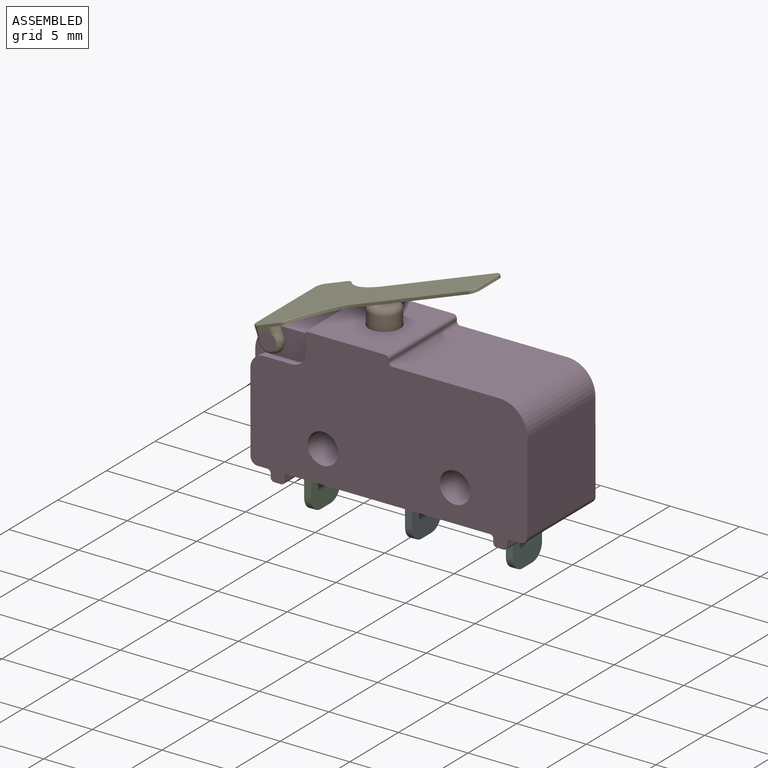
[diagram: assembled view]
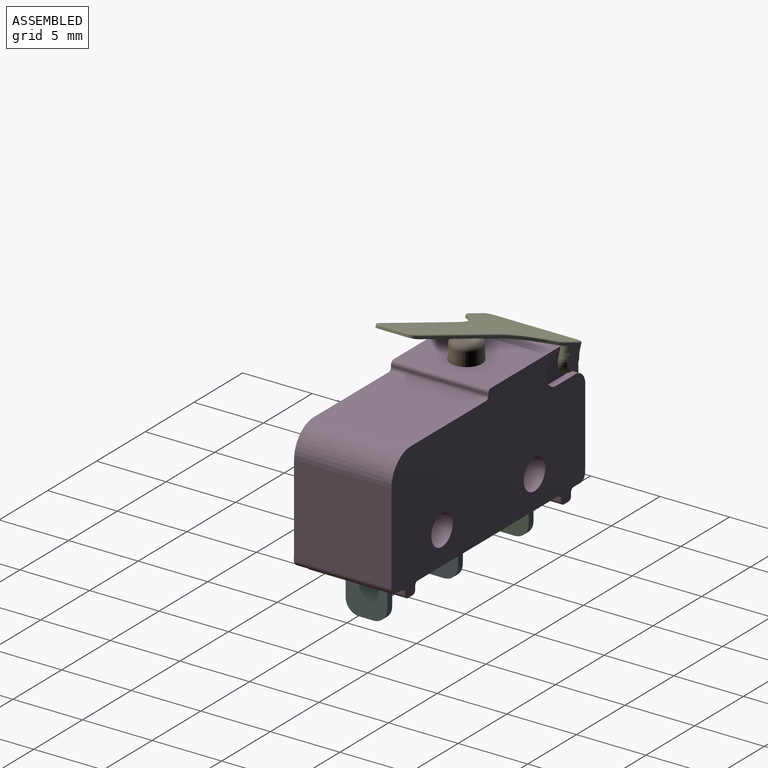
[diagram: assembled view, second angle]
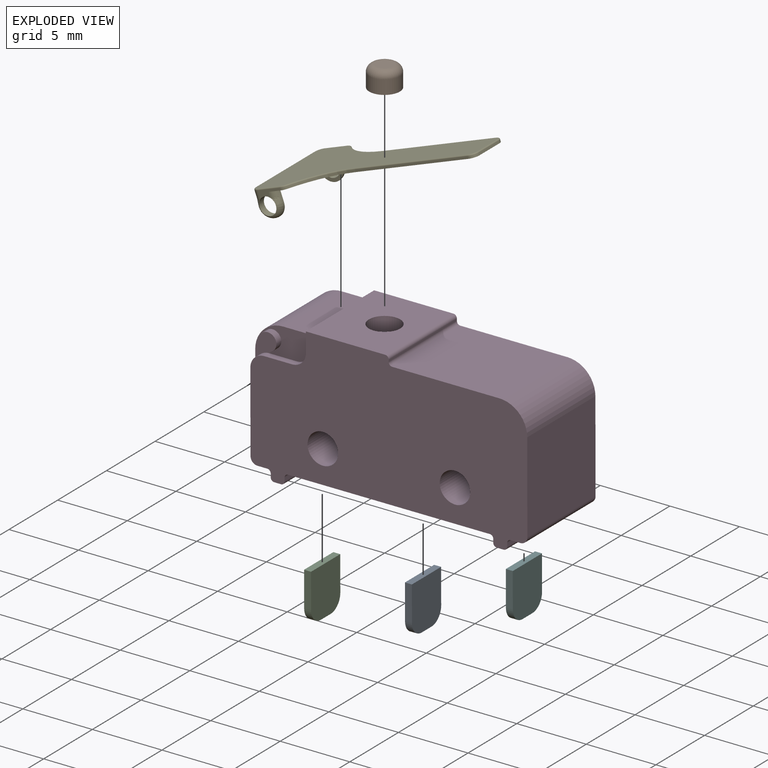
[diagram: exploded view]
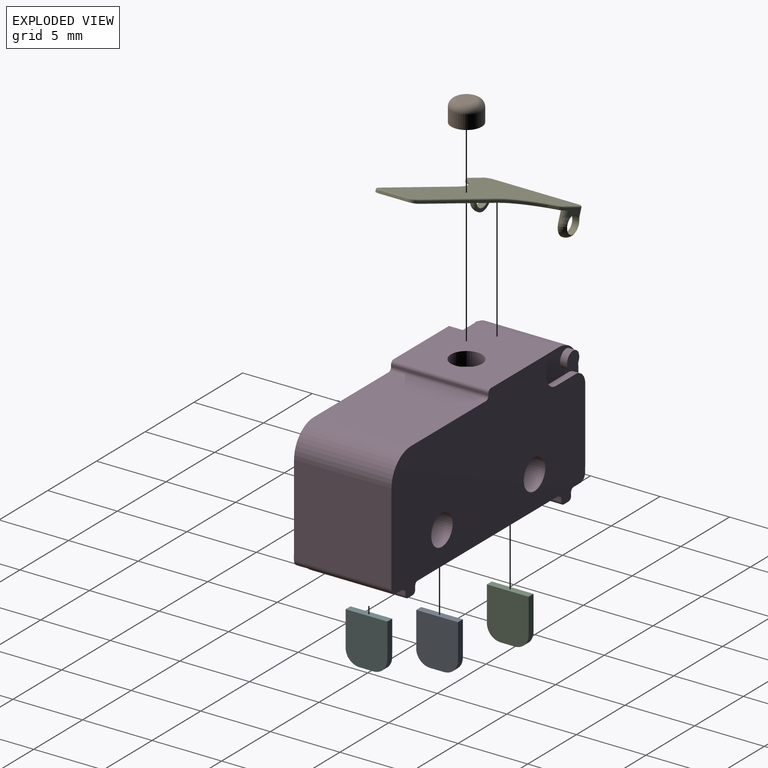
[diagram: exploded view, second angle]
ASSEMBLY  parts=6 mates=5
PART A: 8 faces, bbox 0.5x3x3.5 mm
  f0: plane 3x0.5mm, normal (0,0,1), area 1.5mm2, adj f1,f3,f4,f5
  f1: plane 3.5x3mm, normal (-1,0,0), area 10.1mm2, adj f0,f2,f4,f5,f6,f7
  f2: plane 1x0.5mm, normal (0,0,-1), area 0.5mm2, adj f1,f3,f6,f7
  f3: plane 3.5x3mm, normal (1,0,0), area 10.1mm2, adj f0,f2,f4,f5,f6,f7
  f4: plane 2.5x0.5mm, normal (0,1,0), area 1.3mm2, adj f0,f1,f3,f7
  f5: plane 2.5x0.5mm, normal (0,-1,0), area 1.3mm2, adj f0,f1,f3,f6
  f6: cylinder r=1mm len=1mm, axis (1,0,0), area 0.8mm2, adj f1,f2,f3,f5
  f7: cylinder r=1mm len=1mm, axis (-1,0,0), area 0.8mm2, adj f1,f2,f3,f4
PART B: 4 faces, bbox 2.4x2.4x1.5 mm
  f0: cylinder r=1.1mm len=2.2mm, axis (0,0,-1), area 6.9mm2, adj f2,f3
  f1: plane 1.2x1.2mm, normal (0,0,1), area 1.1mm2, adj f3
  f2: plane 2.2x2.2mm, normal (0,0,-1), area 3.8mm2, adj f0
  f3: torus R=0.6mm, axis (0,0,1), area 4.5mm2, adj f0,f1
PART C: same geometry as A
PART D: 64 faces, bbox 19.9x7x10.4 mm
  f0: plane 14.5x7mm, normal (0,0,-1), area 98.5mm2, adj f1,f2,f5,f22,f32,f33,f48,f49
  f1: cylinder r=0.25mm len=2mm, axis (0,-1,0), area 0.8mm2, adj f0,f5,f19,f53
  f2: cylinder r=0.25mm len=2mm, axis (0,1,0), area 0.8mm2, adj f0,f5,f7,f49
  f3: plane 7x6.75mm, normal (-1,0,0), area 46.2mm2, adj f5,f22,f35,f37,f38,f61,f62,f63
  f4: plane 6x1.75mm, normal (0,0,1), area 10.5mm2, adj f6,f37,f38,f61
  f5: plane 19.9x10.4mm, normal (0,1,0), area 168.9mm2, adj f0,f1,f2,f3,f7,f8,f9,f10
  f6: cylinder r=0.25mm len=6mm, axis (0,-1,0), area 2.4mm2, adj f4,f15,f37,f38
  f7: plane 7x0.7mm, normal (-1,0,0), area 3.1mm2, adj f2,f5,f22,f26,f33,f49,f50,f51
  f8: plane 7x0.5mm, normal (0,0,-1), area 3.5mm2, adj f5,f22,f26,f27
  f9: plane 7x0.25mm, normal (1,0,0), area 1.8mm2, adj f5,f22,f27,f28
  f10: plane 7x0.7mm, normal (0,0,-1), area 4.9mm2, adj f5,f22,f28,f34
  f11: plane 7x6.5mm, normal (1,0,0), area 45.5mm2, adj f5,f22,f23,f34
  f12: plane 7.7x7mm, normal (0,0,1), area 53.9mm2, adj f5,f22,f23,f24
  f13: plane 7x0.15mm, normal (1,0,0), area 1mm2, adj f5,f22,f24,f25
  f14: plane 7x5.7mm, normal (0,0,1), area 35.9mm2, adj f5,f15,f22,f25,f42
  f15: plane 7x1.4mm, normal (-1,0,0), area 2.3mm2, adj f5,f6,f14,f22,f37,f38,f40,f41
  f16: plane 7x0.7mm, normal (0,0,-1), area 4.9mm2, adj f5,f22,f29,f35
  f17: plane 7x0.25mm, normal (-1,0,0), area 1.8mm2, adj f5,f22,f29,f30
  f18: plane 7x0.5mm, normal (0,0,-1), area 3.5mm2, adj f5,f22,f30,f31
  f19: plane 7x0.7mm, normal (1,0,0), area 3.1mm2, adj f1,f5,f22,f31,f32,f53,f54,f55
  f20: cylinder r=1.1mm len=7mm, axis (0,1,0), area 48.4mm2, adj f5,f22
  f21: cylinder r=1.1mm len=7mm, axis (0,1,0), area 48.4mm2, adj f5,f22
  f22: plane 19.9x10.4mm, normal (0,-1,0), area 168.9mm2, adj f0,f3,f7,f8,f9,f10,f11,f12
  f23: cylinder r=2mm len=7mm, axis (0,1,0), area 22mm2, adj f5,f11,f12,f22
  f24: cylinder r=0.25mm len=7mm, axis (0,-1,0), area 2.7mm2, adj f5,f12,f13,f22
  f25: cylinder r=0.25mm len=7mm, axis (0,-1,0), area 2.7mm2, adj f5,f13,f14,f22
  f26: cylinder r=0.25mm len=7mm, axis (0,1,0), area 2.7mm2, adj f5,f7,f8,f22
  f27: cylinder r=0.25mm len=7mm, axis (0,1,0), area 2.7mm2, adj f5,f8,f9,f22
  f28: cylinder r=0.25mm len=7mm, axis (0,1,0), area 2.7mm2, adj f5,f9,f10,f22
  f29: cylinder r=0.25mm len=7mm, axis (0,-1,0), area 2.7mm2, adj f5,f16,f17,f22
  f30: cylinder r=0.25mm len=7mm, axis (0,1,0), area 2.7mm2, adj f5,f17,f18,f22
  f31: cylinder r=0.25mm len=7mm, axis (0,1,0), area 2.7mm2, adj f5,f18,f19,f22
  f32: cylinder r=0.25mm len=2mm, axis (0,-1,0), area 0.8mm2, adj f0,f19,f22,f54
  f33: cylinder r=0.25mm len=2mm, axis (0,1,0), area 0.8mm2, adj f0,f7,f22,f50
  f34: cylinder r=0.5mm len=7mm, axis (0,-1,0), area 5.5mm2, adj f5,f10,f11,f22
  f35: cylinder r=0.5mm len=7mm, axis (0,1,0), area 5.5mm2, adj f3,f5,f16,f22
  f36: plane 2x0.5mm, normal (0,0,1), area 1mm2, adj f5,f37,f40,f62
  f37: plane 4x3.25mm, normal (0,1,0), area 5.9mm2, adj f3,f4,f6,f15,f36,f40,f46,f61
  f38: plane 4x3.25mm, normal (0,-1,0), area 5.9mm2, adj f3,f4,f6,f15,f39,f41,f45,f61
  f39: plane 2x0.5mm, normal (0,0,1), area 1mm2, adj f22,f38,f41,f63
  f40: cylinder r=1mm len=1mm, axis (0,1,0), area 0.8mm2, adj f5,f15,f36,f37
  f41: cylinder r=1mm len=1mm, axis (0,1,0), area 0.8mm2, adj f15,f22,f38,f39
  f42: cylinder r=1.12mm len=2.25mm, axis (0,0,1), area 7.1mm2, adj f14,f43
  f43: plane 2.25x2.25mm, normal (0,0,1), area 4mm2, adj f42
  f44: plane 1.25x1.25mm, normal (0,-1,0), area 1.2mm2, adj f45
  f45: cylinder r=0.62mm len=1.25mm, axis (0,1,0), area 2mm2, adj f38,f44
  f46: cylinder r=0.62mm len=1.25mm, axis (0,1,0), area 2mm2, adj f37,f47
  f47: plane 1.25x1.25mm, normal (0,1,0), area 1.2mm2, adj f46
  f48: plane 3x0.2mm, normal (1,0,0), area 0.6mm2, adj f0,f49,f50,f51
  f49: plane 0.5x0.45mm, normal (0,-1,0), area 0.1mm2, adj f0,f2,f7,f48,f51
  f50: plane 0.5x0.45mm, normal (0,1,0), area 0.1mm2, adj f0,f7,f33,f48,f51
  f51: plane 3x0.5mm, normal (0,0,-1), area 1.5mm2, adj f7,f48,f49,f50
  f52: plane 3x0.2mm, normal (-1,0,0), area 0.6mm2, adj f0,f53,f54,f55
  f53: plane 0.5x0.45mm, normal (0,-1,0), area 0.1mm2, adj f0,f1,f19,f52,f55
  f54: plane 0.5x0.45mm, normal (0,1,0), area 0.1mm2, adj f0,f19,f32,f52,f55
  f55: plane 3x0.5mm, normal (0,0,-1), area 1.5mm2, adj f19,f52,f53,f54
  f56: plane 3x0.2mm, normal (-1,0,0), area 0.6mm2, adj f0,f58,f59,f60
  f57: plane 3x0.2mm, normal (1,0,0), area 0.6mm2, adj f0,f58,f59,f60
  f58: plane 0.5x0.2mm, normal (0,-1,0), area 0.1mm2, adj f0,f56,f57,f60
  f59: plane 0.5x0.2mm, normal (0,1,0), area 0.1mm2, adj f0,f56,f57,f60
  f60: plane 3x0.5mm, normal (0,0,-1), area 1.5mm2, adj f56,f57,f58,f59
  f61: cylinder r=2mm len=6mm, axis (0,1,0), area 18.8mm2, adj f3,f4,f37,f38
  f62: cylinder r=1mm len=1mm, axis (0,-1,0), area 0.8mm2, adj f3,f5,f36,f37
  f63: cylinder r=1mm len=1mm, axis (0,-1,0), area 0.8mm2, adj f3,f22,f38,f39
PART E: 48 faces, bbox 14.7x7.1x7.2 mm
  f0: plane 6x0.16mm, normal (-0.93,0,-0.36), area 1mm2, adj f3,f20,f25,f42
  f1: plane 0.47x0.18mm, normal (-0.93,0,-0.36), area 0mm2, adj f7,f14,f27
  f2: plane 14.43x6.84mm, normal (-0.36,0,0.93), area 57.9mm2, adj f34,f35,f36,f37,f38,f39,f40,f41
  f3: plane 14.58x7mm, normal (0.36,0,-0.93), area 59.7mm2, adj f0,f4,f5,f13,f14,f15,f16,f17
  f4: plane 2x0.16mm, normal (0.93,0,0.36), area 0.3mm2, adj f3,f31,f33,f39
  f5: plane 1.67x1.12mm, normal (0,1,0), area 0.5mm2, adj f3,f12,f20,f23,f32,f46
  f6: plane 0.47x0.18mm, normal (-0.93,0,-0.36), area 0mm2, adj f10,f15,f21
  f7: cylinder r=0.88mm len=1.69mm, axis (0,1,0), area 0.2mm2, adj f1,f8,f14,f29
  f8: plane 0.47x0.18mm, normal (0.93,0,0.36), area 0mm2, adj f7,f14,f28
  f9: cylinder r=0.62mm len=1.25mm, axis (0,1,0), area 2mm2, adj f13,f14,f27,f28,f29
  f10: cylinder r=0.88mm len=1.69mm, axis (0,1,0), area 0.2mm2, adj f6,f11,f15,f22
  f11: plane 0.47x0.18mm, normal (0.93,0,0.36), area 0mm2, adj f10,f15,f24
  f12: cylinder r=0.62mm len=1.25mm, axis (0,1,0), area 2mm2, adj f5,f15,f21,f22,f24
  f13: plane 1.67x1.12mm, normal (0,-1,0), area 0.5mm2, adj f3,f9,f25,f26,f30,f38
  f14: plane 2x2mm, normal (0,1,0), area 1.5mm2, adj f1,f3,f7,f8,f9,f25,f26
  f15: plane 2x2mm, normal (0,-1,0), area 1.5mm2, adj f3,f6,f10,f11,f12,f20,f23
  f16: plane 8.14x3.24mm, normal (0,1,0), area 1.5mm2, adj f3,f19,f33,f43
  f17: plane 8.14x3.24mm, normal (0,-1,0), area 1.5mm2, adj f3,f18,f31,f35
  f18: cylinder r=5mm len=3.66mm, axis (0.36,0,-0.93), area 0.7mm2, adj f3,f17,f30,f34
  f19: cylinder r=5mm len=3.66mm, axis (-0.36,0,0.93), area 0.7mm2, adj f3,f16,f32,f45
  f20: cylinder r=0.5mm len=0.69mm, axis (0.36,0,-0.93), area 0.4mm2, adj f0,f5,f15,f21,f44
  f21: bspline ~0.71x0.54mm, area 0.3mm2, adj f6,f12,f20,f22
  f22: torus R=0.38mm, axis (0,1,0), area 1.3mm2, adj f10,f12,f21,f24
  f23: cylinder r=0.5mm len=0.6mm, axis (-0.36,0,0.93), area 0.3mm2, adj f3,f5,f15,f24
  f24: bspline ~0.65x0.56mm, area 0.3mm2, adj f11,f12,f22,f23
  f25: cylinder r=0.5mm len=0.69mm, axis (-0.36,0,0.93), area 0.4mm2, adj f0,f13,f14,f27,f40
  f26: cylinder r=0.5mm len=0.6mm, axis (0.36,0,-0.93), area 0.3mm2, adj f3,f13,f14,f28
  f27: bspline ~0.65x0.5mm, area 0.3mm2, adj f1,f9,f25,f29
  f28: bspline ~0.71x0.7mm, area 0.3mm2, adj f8,f9,f26,f29
  f29: torus R=0.38mm, axis (0,-1,0), area 1.3mm2, adj f7,f9,f27,f28
  f30: cylinder r=0.5mm len=0.42mm, axis (0.36,0,-0.93), area 0.1mm2, adj f3,f13,f18,f36
  f31: cylinder r=0.5mm len=0.53mm, axis (-0.36,0,0.93), area 0.1mm2, adj f3,f4,f17,f37
  f32: cylinder r=0.5mm len=0.42mm, axis (-0.36,0,0.93), area 0.1mm2, adj f3,f5,f19,f47
  f33: cylinder r=0.5mm len=0.53mm, axis (0.36,0,-0.93), area 0.1mm2, adj f3,f4,f16,f41
  f34: torus R=5.08mm, axis (0.36,0,-0.93), area 0.6mm2, adj f2,f18,f35,f36
  f35: cylinder r=0.08mm len=8.1mm, axis (-0.93,0,-0.36), area 1.1mm2, adj f2,f17,f34,f37
  f36: torus R=0.42mm, axis (0.36,0,-0.93), area 0.1mm2, adj f2,f30,f34,f38
  f37: torus R=0.42mm, axis (0.36,0,-0.93), area 0.1mm2, adj f2,f31,f35,f39
  f38: cylinder r=0.08mm len=1.63mm, axis (0.93,0,0.36), area 0.2mm2, adj f2,f13,f36,f40
  f39: cylinder r=0.08mm len=2mm, axis (0,-1,0), area 0.3mm2, adj f2,f4,f37,f41
  f40: torus R=0.42mm, axis (0.36,0,-0.93), area 0.1mm2, adj f2,f25,f38,f42
  f41: torus R=0.42mm, axis (0.36,0,-0.93), area 0.1mm2, adj f2,f33,f39,f43
  f42: cylinder r=0.08mm len=6mm, axis (0,-1,0), area 0.8mm2, adj f0,f2,f40,f44
  f43: cylinder r=0.08mm len=8.1mm, axis (0.93,0,0.36), area 1.1mm2, adj f2,f16,f41,f45
  f44: torus R=0.42mm, axis (0.36,0,-0.93), area 0.1mm2, adj f2,f20,f42,f46
  f45: torus R=5.08mm, axis (0.36,0,-0.93), area 0.6mm2, adj f2,f19,f43,f47
  f46: cylinder r=0.08mm len=1.63mm, axis (-0.93,0,-0.36), area 0.2mm2, adj f2,f5,f44,f47
  f47: torus R=0.42mm, axis (0.36,0,-0.93), area 0.1mm2, adj f2,f32,f45,f46
PART F: same geometry as A
PLACE A rot(axis=(0,-1,0),0.1deg) t=(7.26,0,0.02)mm
PLACE B rot(axis=(0,-1,0),0.1deg) t=(0.01,0,0)mm
PLACE C rot(axis=(0,-1,0),0.1deg) t=(0.01,0,0.01)mm
PLACE D rot(axis=(0,-1,0),0.1deg) t=(0.01,0,0.01)mm
PLACE E rot(axis=(0,1,0),0.4deg) t=(-0.04,0,-0.03)mm
PLACE F rot(axis=(0,-1,0),0.1deg) t=(14.51,0,0.03)mm
MATE fastened F.f0 <-> D.f51  axis (0,0,1) through (12.01,0,-2.12)mm
MATE fastened C.f0 <-> D.f55  axis (0,0,1) through (-2.49,0,-2.15)mm
MATE fastened A.f0 <-> D.f60  axis (0,0,1) through (4.76,0,-2.13)mm
MATE revolute E.f7 <-> D.f45  axis (0,-1,0) through (-3.95,-3.5,5.9)mm
MATE slider B.f0 <-> D.f42  axis (0,0,-1) through (2,0,7.3)mm
